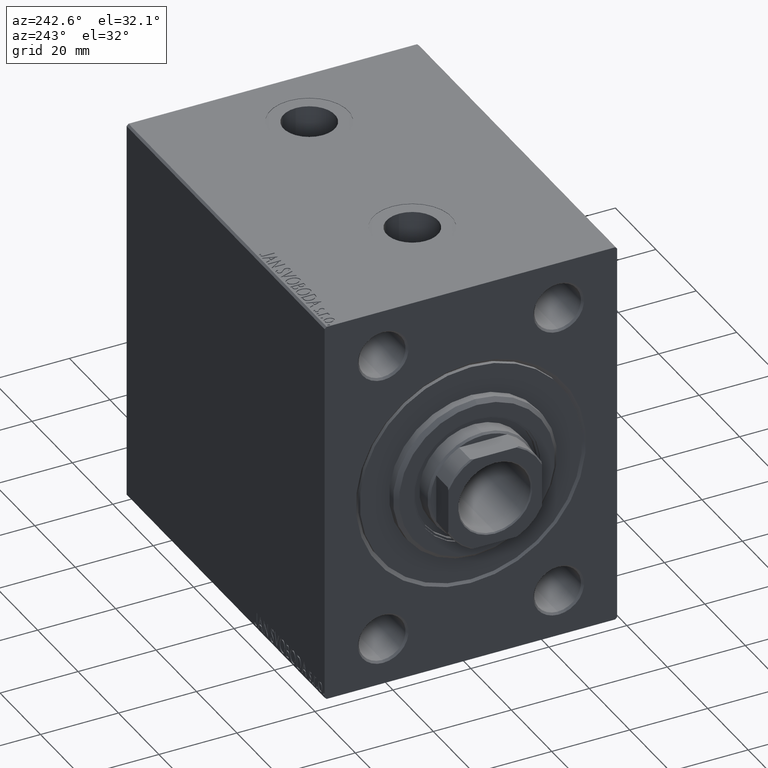
[diagram: clean part render]
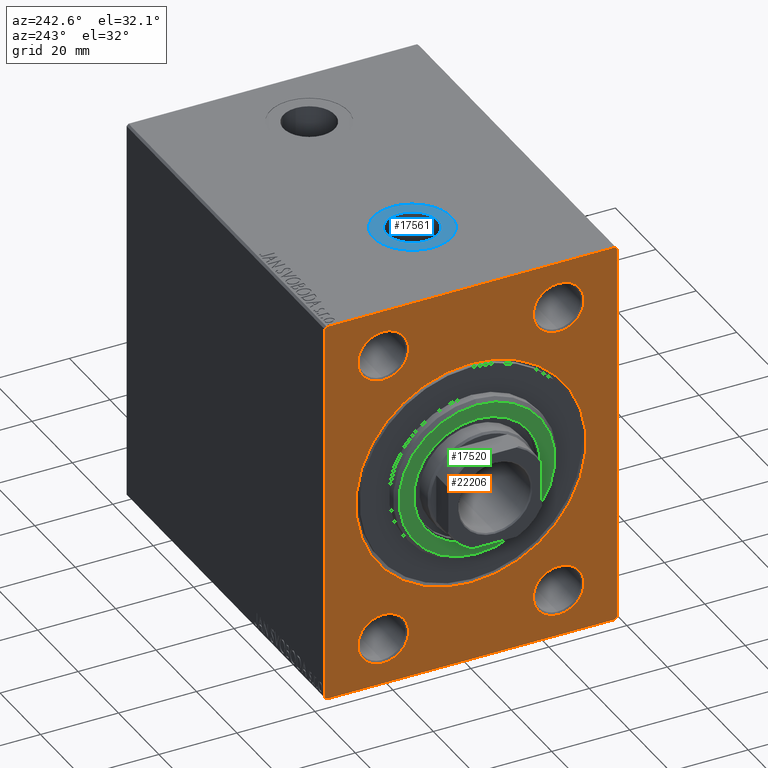
[diagram: same view with three faces highlighted in distinct colors, each labeled with its STEP entity id]
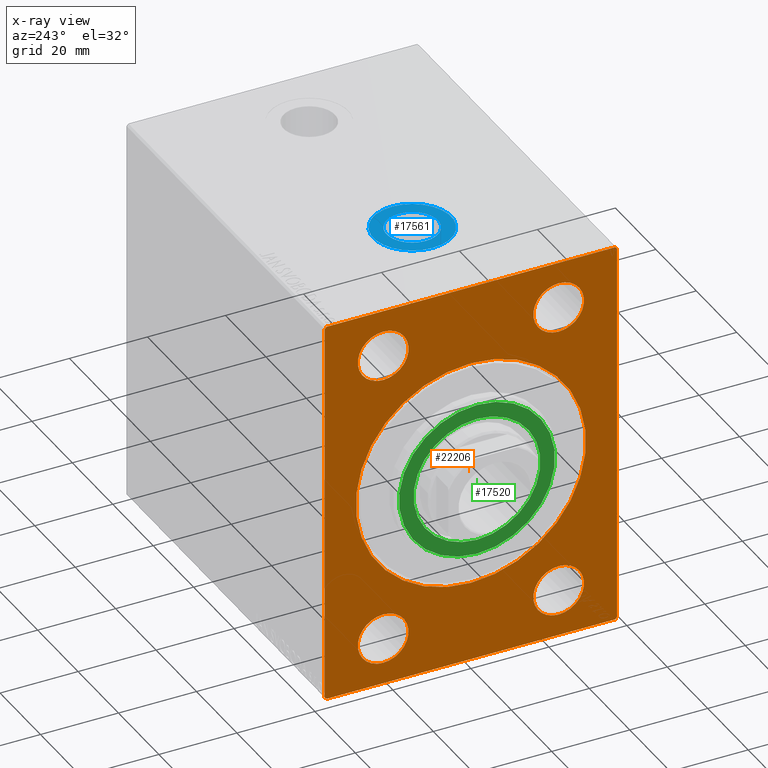
[diagram: x-ray of the same camera — body ghosted, the three highlighted faces saturated]
A machine part, auxiliary view with three faces highlighted in distinct colors.
The next image is the same camera in x-ray (body ghosted, the three faces saturated) — at least one of them is partly hidden behind the body in this view.
Their STEP definitions:

[orange] entity #22206 — the highlighted planar face has unit normal (1, 0, 0).
#15 = LINE ( 'NONE', #17143, #21832 ) ;
#80 = ORIENTED_EDGE ( 'NONE', *, *, #11935, .T. ) ;
#1145 = EDGE_CURVE ( 'NONE', #28542, #15564, #24649, .T. ) ;
#1508 = EDGE_LOOP ( 'NONE', ( #16975, #25812 ) ) ;
#1802 = VECTOR ( 'NONE', #20828, 1000.000000000000000 ) ;
#1917 = ORIENTED_EDGE ( 'NONE', *, *, #43427, .T. ) ;
#1982 = EDGE_CURVE ( 'NONE', #11039, #31494, #38134, .T. ) ;
#2757 = EDGE_CURVE ( 'NONE', #9831, #8340, #31134, .T. ) ;
#2884 = DIRECTION ( 'NONE',  ( -0.000000000000000000, 0.7071067811865525687, -0.7071067811865425767 ) ) ;
#2927 = VECTOR ( 'NONE', #4998, 1000.000000000000000 ) ;
#3395 = CIRCLE ( 'NONE', #34270, 6.499999999999992006 ) ;
#3656 = CIRCLE ( 'NONE', #36687, 29.50000000000001421 ) ;
#4084 = EDGE_CURVE ( 'NONE', #42282, #26099, #15, .T. ) ;
#4120 = VERTEX_POINT ( 'NONE', #40958 ) ;
#4163 = EDGE_CURVE ( 'NONE', #43003, #12998, #29019, .T. ) ;
#4173 = CARTESIAN_POINT ( 'NONE',  ( 0.000000000000000000, 37.49999999999999289, 50.00000000000000711 ) ) ;
#4322 = AXIS2_PLACEMENT_3D ( 'NONE', #38563, #40335, #13130 ) ;
#4853 = LINE ( 'NONE', #39257, #27435 ) ;
#4901 = CARTESIAN_POINT ( 'NONE',  ( 0.000000000000000000, -22.50000000000000000, 31.50000000000000000 ) ) ;
#4998 = DIRECTION ( 'NONE',  ( 0.000000000000000000, 1.000000000000000000, 0.000000000000000000 ) ) ;
#5139 = DIRECTION ( 'NONE',  ( 0.000000000000000000, 0.000000000000000000, -1.000000000000000000 ) ) ;
#5625 = DIRECTION ( 'NONE',  ( 1.000000000000000000, 0.000000000000000000, 0.000000000000000000 ) ) ;
#6196 = EDGE_CURVE ( 'NONE', #17336, #39296, #10736, .T. ) ;
#6201 = CARTESIAN_POINT ( 'NONE',  ( 0.000000000000000000, 37.50000000000000711, -49.50000000000001421 ) ) ;
#6473 = CARTESIAN_POINT ( 'NONE',  ( 0.000000000000000000, -37.50000000000000000, 49.99999999999998579 ) ) ;
#6548 = CIRCLE ( 'NONE', #41010, 6.499999999999992006 ) ;
#6905 = CARTESIAN_POINT ( 'NONE',  ( 0.000000000000000000, 37.50000000000000711, -50.00000000000000000 ) ) ;
#7177 = EDGE_CURVE ( 'NONE', #8897, #4120, #38088, .T. ) ;
#7768 = CARTESIAN_POINT ( 'NONE',  ( 0.000000000000000000, -37.50000000000000000, -49.49999999999997158 ) ) ;
#8116 = AXIS2_PLACEMENT_3D ( 'NONE', #18113, #15173, #17883 ) ;
#8253 = EDGE_CURVE ( 'NONE', #42282, #24604, #8596, .T. ) ;
#8273 = VECTOR ( 'NONE', #40656, 1000.000000000000000 ) ;
#8340 = VERTEX_POINT ( 'NONE', #13971 ) ;
#8370 = FACE_OUTER_BOUND ( 'NONE', #11689, .T. ) ;
#8596 = LINE ( 'NONE', #38511, #2927 ) ;
#8760 = CARTESIAN_POINT ( 'NONE',  ( 0.000000000000000000, 37.49999999999999289, 49.50000000000002842 ) ) ;
#8897 = VERTEX_POINT ( 'NONE', #41883 ) ;
#8942 = ORIENTED_EDGE ( 'NONE', *, *, #2757, .T. ) ;
#9449 = DIRECTION ( 'NONE',  ( 1.000000000000000000, 0.000000000000000000, 0.000000000000000000 ) ) ;
#9489 = CARTESIAN_POINT ( 'NONE',  ( 0.000000000000000000, -22.50000000000000000, -31.50000000000001421 ) ) ;
#9831 = VERTEX_POINT ( 'NONE', #4901 ) ;
#10736 = CIRCLE ( 'NONE', #16517, 6.499999999999992006 ) ;
#10757 = VERTEX_POINT ( 'NONE', #11714 ) ;
#11039 = VERTEX_POINT ( 'NONE', #6201 ) ;
#11297 = FACE_BOUND ( 'NONE', #14178, .T. ) ;
#11584 = CARTESIAN_POINT ( 'NONE',  ( 0.000000000000000000, 22.50000000000000000, -38.00000000000000711 ) ) ;
#11689 = EDGE_LOOP ( 'NONE', ( #34266, #19938, #30136, #80, #31600, #1917, #43076, #34173 ) ) ;
#11714 = CARTESIAN_POINT ( 'NONE',  ( 0.000000000000000000, 37.00000000000000711, 50.00000000000000711 ) ) ;
#11810 = CARTESIAN_POINT ( 'NONE',  ( 0.000000000000000000, 22.50000000000000000, -44.50000000000000000 ) ) ;
#11889 = CARTESIAN_POINT ( 'NONE',  ( 0.000000000000000000, -22.50000000000000000, 37.99999999999999289 ) ) ;
#11935 = EDGE_CURVE ( 'NONE', #10757, #31494, #17055, .T. ) ;
#12482 = DIRECTION ( 'NONE',  ( 1.000000000000000000, 0.000000000000000000, 0.000000000000000000 ) ) ;
#12744 = DIRECTION ( 'NONE',  ( 0.000000000000000000, 0.000000000000000000, -1.000000000000000000 ) ) ;
#12809 = DIRECTION ( 'NONE',  ( 0.000000000000000000, 0.000000000000000000, -1.000000000000000000 ) ) ;
#12855 = EDGE_CURVE ( 'NONE', #4120, #8897, #3656, .T. ) ;
#12889 = EDGE_CURVE ( 'NONE', #8340, #9831, #6548, .T. ) ;
#12998 = VERTEX_POINT ( 'NONE', #27616 ) ;
#13130 = DIRECTION ( 'NONE',  ( 0.000000000000000000, 0.000000000000000000, -1.000000000000000000 ) ) ;
#13971 = CARTESIAN_POINT ( 'NONE',  ( 0.000000000000000000, -22.50000000000000000, 44.49999999999998579 ) ) ;
#14061 = AXIS2_PLACEMENT_3D ( 'NONE', #27118, #40829, #12744 ) ;
#14178 = EDGE_LOOP ( 'NONE', ( #20357, #29654 ) ) ;
#14620 = VERTEX_POINT ( 'NONE', #25029 ) ;
#15080 = CARTESIAN_POINT ( 'NONE',  ( 0.000000000000000000, 22.50000000000000000, 44.49999999999998579 ) ) ;
#15125 = VECTOR ( 'NONE', #2884, 999.9999999999998863 ) ;
#15173 = DIRECTION ( 'NONE',  ( 1.000000000000000000, 0.000000000000000000, 0.000000000000000000 ) ) ;
#15346 = PLANE ( 'NONE',  #21151 ) ;
#15564 = VERTEX_POINT ( 'NONE', #15080 ) ;
#16040 = EDGE_CURVE ( 'NONE', #29433, #14620, #4853, .T. ) ;
#16517 = AXIS2_PLACEMENT_3D ( 'NONE', #32210, #25231, #17835 ) ;
#16975 = ORIENTED_EDGE ( 'NONE', *, *, #26189, .T. ) ;
#17055 = LINE ( 'NONE', #36829, #15125 ) ;
#17143 = CARTESIAN_POINT ( 'NONE',  ( 0.000000000000000000, -37.00000000000000000, -50.00000000000000000 ) ) ;
#17336 = VERTEX_POINT ( 'NONE', #26886 ) ;
#17659 = CIRCLE ( 'NONE', #14061, 6.499999999999992006 ) ;
#17835 = DIRECTION ( 'NONE',  ( 0.000000000000000000, 0.000000000000000000, -1.000000000000000000 ) ) ;
#17883 = DIRECTION ( 'NONE',  ( 0.000000000000000000, 0.000000000000000000, -1.000000000000000000 ) ) ;
#18113 = CARTESIAN_POINT ( 'NONE',  ( 0.000000000000000000, 22.50000000000000000, 37.99999999999999289 ) ) ;
#18722 = CARTESIAN_POINT ( 'NONE',  ( 0.000000000000000000, 0.000000000000000000, 0.000000000000000000 ) ) ;
#19317 = DIRECTION ( 'NONE',  ( 1.000000000000000000, 0.000000000000000000, 0.000000000000000000 ) ) ;
#19476 = DIRECTION ( 'NONE',  ( -0.000000000000000000, 0.7071067811865525687, 0.7071067811865425767 ) ) ;
#19827 = CIRCLE ( 'NONE', #25550, 6.499999999999992006 ) ;
#19938 = ORIENTED_EDGE ( 'NONE', *, *, #16040, .T. ) ;
#19988 = LINE ( 'NONE', #6473, #8273 ) ;
#20357 = ORIENTED_EDGE ( 'NONE', *, *, #25253, .T. ) ;
#20669 = LINE ( 'NONE', #23822, #36145 ) ;
#20828 = DIRECTION ( 'NONE',  ( 0.000000000000000000, -1.000000000000000000, -2.775557561562891844E-16 ) ) ;
#20838 = DIRECTION ( 'NONE',  ( 0.000000000000000000, -1.387778780781445676E-16, 1.000000000000000000 ) ) ;
#21151 = AXIS2_PLACEMENT_3D ( 'NONE', #18722, #25008, #32425 ) ;
#21242 = DIRECTION ( 'NONE',  ( 0.000000000000000000, 0.000000000000000000, -1.000000000000000000 ) ) ;
#21278 = LINE ( 'NONE', #4173, #1802 ) ;
#21422 = FACE_BOUND ( 'NONE', #1508, .T. ) ;
#21679 = DIRECTION ( 'NONE',  ( 1.000000000000000000, 0.000000000000000000, 0.000000000000000000 ) ) ;
#21832 = VECTOR ( 'NONE', #34225, 1000.000000000000114 ) ;
#22206 = ADVANCED_FACE ( 'NONE', ( #31989, #25459, #42754, #11297, #21422, #8370 ), #15346, .F. ) ;
#22542 = ORIENTED_EDGE ( 'NONE', *, *, #6196, .T. ) ;
#23183 = DIRECTION ( 'NONE',  ( 0.000000000000000000, 0.000000000000000000, -1.000000000000000000 ) ) ;
#23602 = CARTESIAN_POINT ( 'NONE',  ( 0.000000000000000000, -22.50000000000000000, 37.99999999999999289 ) ) ;
#23822 = CARTESIAN_POINT ( 'NONE',  ( 0.000000000000000000, 37.50000000000000711, -49.50000000000001421 ) ) ;
#24203 = EDGE_CURVE ( 'NONE', #29433, #26099, #19988, .T. ) ;
#24604 = VERTEX_POINT ( 'NONE', #34193 ) ;
#24649 = CIRCLE ( 'NONE', #8116, 6.499999999999992006 ) ;
#25008 = DIRECTION ( 'NONE',  ( 1.000000000000000000, 0.000000000000000000, 0.000000000000000000 ) ) ;
#25029 = CARTESIAN_POINT ( 'NONE',  ( 0.000000000000000000, -36.99999999999999289, 49.99999999999998579 ) ) ;
#25231 = DIRECTION ( 'NONE',  ( 1.000000000000000000, 0.000000000000000000, 0.000000000000000000 ) ) ;
#25253 = EDGE_CURVE ( 'NONE', #15564, #28542, #17659, .T. ) ;
#25459 = FACE_BOUND ( 'NONE', #44337, .T. ) ;
#25467 = ORIENTED_EDGE ( 'NONE', *, *, #34869, .T. ) ;
#25550 = AXIS2_PLACEMENT_3D ( 'NONE', #11584, #12482, #39913 ) ;
#25812 = ORIENTED_EDGE ( 'NONE', *, *, #4163, .T. ) ;
#26099 = VERTEX_POINT ( 'NONE', #7768 ) ;
#26189 = EDGE_CURVE ( 'NONE', #12998, #43003, #19827, .T. ) ;
#26886 = CARTESIAN_POINT ( 'NONE',  ( 0.000000000000000000, -22.50000000000000000, -44.50000000000000000 ) ) ;
#26967 = DIRECTION ( 'NONE',  ( 0.000000000000000000, 0.000000000000000000, -1.000000000000000000 ) ) ;
#27118 = CARTESIAN_POINT ( 'NONE',  ( 0.000000000000000000, 22.50000000000000000, 37.99999999999999289 ) ) ;
#27435 = VECTOR ( 'NONE', #19476, 999.9999999999998863 ) ;
#27616 = CARTESIAN_POINT ( 'NONE',  ( 0.000000000000000000, 22.50000000000000000, -31.50000000000001421 ) ) ;
#27842 = CARTESIAN_POINT ( 'NONE',  ( 0.000000000000000000, 22.50000000000000000, 31.50000000000000000 ) ) ;
#28108 = CARTESIAN_POINT ( 'NONE',  ( 0.000000000000000000, -37.00000000000000000, -50.00000000000000000 ) ) ;
#28542 = VERTEX_POINT ( 'NONE', #27842 ) ;
#28809 = EDGE_CURVE ( 'NONE', #10757, #14620, #21278, .T. ) ;
#29019 = CIRCLE ( 'NONE', #36913, 6.499999999999992006 ) ;
#29433 = VERTEX_POINT ( 'NONE', #38637 ) ;
#29654 = ORIENTED_EDGE ( 'NONE', *, *, #1145, .T. ) ;
#29984 = ORIENTED_EDGE ( 'NONE', *, *, #7177, .T. ) ;
#30136 = ORIENTED_EDGE ( 'NONE', *, *, #28809, .F. ) ;
#31134 = CIRCLE ( 'NONE', #40473, 6.499999999999992006 ) ;
#31494 = VERTEX_POINT ( 'NONE', #8760 ) ;
#31600 = ORIENTED_EDGE ( 'NONE', *, *, #1982, .F. ) ;
#31989 = FACE_BOUND ( 'NONE', #35497, .T. ) ;
#32210 = CARTESIAN_POINT ( 'NONE',  ( 0.000000000000000000, -22.50000000000000000, -38.00000000000000711 ) ) ;
#32425 = DIRECTION ( 'NONE',  ( 0.000000000000000000, 0.000000000000000000, -1.000000000000000000 ) ) ;
#33274 = CARTESIAN_POINT ( 'NONE',  ( 0.000000000000000000, 0.000000000000000000, 0.000000000000000000 ) ) ;
#34173 = ORIENTED_EDGE ( 'NONE', *, *, #4084, .T. ) ;
#34190 = EDGE_LOOP ( 'NONE', ( #44491, #8942 ) ) ;
#34193 = CARTESIAN_POINT ( 'NONE',  ( 0.000000000000000000, 37.00000000000001421, -50.00000000000000000 ) ) ;
#34225 = DIRECTION ( 'NONE',  ( -0.000000000000000000, -0.7071067811865474617, 0.7071067811865474617 ) ) ;
#34266 = ORIENTED_EDGE ( 'NONE', *, *, #24203, .F. ) ;
#34270 = AXIS2_PLACEMENT_3D ( 'NONE', #40250, #9449, #23183 ) ;
#34869 = EDGE_CURVE ( 'NONE', #39296, #17336, #3395, .T. ) ;
#35497 = EDGE_LOOP ( 'NONE', ( #29984, #42951 ) ) ;
#36145 = VECTOR ( 'NONE', #41337, 1000.000000000000000 ) ;
#36687 = AXIS2_PLACEMENT_3D ( 'NONE', #33274, #40019, #26967 ) ;
#36829 = CARTESIAN_POINT ( 'NONE',  ( 0.000000000000000000, 37.00000000000000711, 50.00000000000000711 ) ) ;
#36913 = AXIS2_PLACEMENT_3D ( 'NONE', #38314, #21679, #21242 ) ;
#38088 = CIRCLE ( 'NONE', #4322, 29.50000000000001421 ) ;
#38134 = LINE ( 'NONE', #6905, #42604 ) ;
#38314 = CARTESIAN_POINT ( 'NONE',  ( 0.000000000000000000, 22.50000000000000000, -38.00000000000000711 ) ) ;
#38511 = CARTESIAN_POINT ( 'NONE',  ( 0.000000000000000000, -37.50000000000000000, -50.00000000000000000 ) ) ;
#38563 = CARTESIAN_POINT ( 'NONE',  ( 0.000000000000000000, 0.000000000000000000, 0.000000000000000000 ) ) ;
#38637 = CARTESIAN_POINT ( 'NONE',  ( 0.000000000000000000, -37.50000000000000000, 49.49999999999998579 ) ) ;
#39257 = CARTESIAN_POINT ( 'NONE',  ( 0.000000000000000000, -37.50000000000000000, 49.49999999999998579 ) ) ;
#39296 = VERTEX_POINT ( 'NONE', #9489 ) ;
#39913 = DIRECTION ( 'NONE',  ( 0.000000000000000000, 0.000000000000000000, -1.000000000000000000 ) ) ;
#40019 = DIRECTION ( 'NONE',  ( 1.000000000000000000, 0.000000000000000000, 0.000000000000000000 ) ) ;
#40250 = CARTESIAN_POINT ( 'NONE',  ( 0.000000000000000000, -22.50000000000000000, -38.00000000000000711 ) ) ;
#40335 = DIRECTION ( 'NONE',  ( 1.000000000000000000, 0.000000000000000000, 0.000000000000000000 ) ) ;
#40473 = AXIS2_PLACEMENT_3D ( 'NONE', #11889, #19317, #5139 ) ;
#40656 = DIRECTION ( 'NONE',  ( 0.000000000000000000, 0.000000000000000000, -1.000000000000000000 ) ) ;
#40829 = DIRECTION ( 'NONE',  ( 1.000000000000000000, 0.000000000000000000, 0.000000000000000000 ) ) ;
#40958 = CARTESIAN_POINT ( 'NONE',  ( 0.000000000000000000, 3.612708057484693970E-15, -29.50000000000001421 ) ) ;
#41010 = AXIS2_PLACEMENT_3D ( 'NONE', #23602, #5625, #12809 ) ;
#41337 = DIRECTION ( 'NONE',  ( 0.000000000000000000, -0.7071067811865524577, -0.7071067811865426878 ) ) ;
#41883 = CARTESIAN_POINT ( 'NONE',  ( 0.000000000000000000, 0.000000000000000000, 29.50000000000001421 ) ) ;
#42282 = VERTEX_POINT ( 'NONE', #28108 ) ;
#42604 = VECTOR ( 'NONE', #20838, 1000.000000000000000 ) ;
#42754 = FACE_BOUND ( 'NONE', #34190, .T. ) ;
#42951 = ORIENTED_EDGE ( 'NONE', *, *, #12855, .T. ) ;
#43003 = VERTEX_POINT ( 'NONE', #11810 ) ;
#43076 = ORIENTED_EDGE ( 'NONE', *, *, #8253, .F. ) ;
#43427 = EDGE_CURVE ( 'NONE', #11039, #24604, #20669, .T. ) ;
#44337 = EDGE_LOOP ( 'NONE', ( #25467, #22542 ) ) ;
#44491 = ORIENTED_EDGE ( 'NONE', *, *, #12889, .T. ) ;

[blue] entity #17561 — the highlighted planar face has unit normal (0, 0, 1).
#1416 = CARTESIAN_POINT ( 'NONE',  ( 39.00000000000000000, -1.387778780781445991E-14, 49.89999999999999858 ) ) ;
#3653 = DIRECTION ( 'NONE',  ( 0.000000000000000000, 0.000000000000000000, 1.000000000000000000 ) ) ;
#4772 = EDGE_CURVE ( 'NONE', #27472, #17822, #32730, .T. ) ;
#6003 = VERTEX_POINT ( 'NONE', #31324 ) ;
#7244 = AXIS2_PLACEMENT_3D ( 'NONE', #43871, #33776, #20066 ) ;
#8697 = CIRCLE ( 'NONE', #7244, 9.999999999999998224 ) ;
#9744 = FACE_BOUND ( 'NONE', #17795, .T. ) ;
#9748 = AXIS2_PLACEMENT_3D ( 'NONE', #18826, #32533, #22652 ) ;
#12520 = AXIS2_PLACEMENT_3D ( 'NONE', #33649, #26897, #40827 ) ;
#13258 = CIRCLE ( 'NONE', #12520, 6.579999999999999183 ) ;
#13566 = FACE_OUTER_BOUND ( 'NONE', #20351, .T. ) ;
#13846 = EDGE_CURVE ( 'NONE', #17822, #27472, #8697, .T. ) ;
#15272 = ORIENTED_EDGE ( 'NONE', *, *, #13846, .T. ) ;
#15548 = AXIS2_PLACEMENT_3D ( 'NONE', #29371, #42393, #39709 ) ;
#16710 = ORIENTED_EDGE ( 'NONE', *, *, #4772, .T. ) ;
#17561 = ADVANCED_FACE ( 'NONE', ( #9744, #13566 ), #41198, .T. ) ;
#17795 = EDGE_LOOP ( 'NONE', ( #23995, #22965 ) ) ;
#17822 = VERTEX_POINT ( 'NONE', #28815 ) ;
#18826 = CARTESIAN_POINT ( 'NONE',  ( 29.00000000000000000, -1.387778780781445991E-14, 49.89999999999999858 ) ) ;
#20066 = DIRECTION ( 'NONE',  ( 1.000000000000000000, 0.000000000000000000, 0.000000000000000000 ) ) ;
#20096 = CARTESIAN_POINT ( 'NONE',  ( 29.00000000000000000, -1.387778780781445991E-14, 49.89999999999999858 ) ) ;
#20351 = EDGE_LOOP ( 'NONE', ( #16710, #15272 ) ) ;
#21590 = EDGE_CURVE ( 'NONE', #24774, #6003, #13258, .T. ) ;
#22453 = AXIS2_PLACEMENT_3D ( 'NONE', #20096, #3653, #34025 ) ;
#22652 = DIRECTION ( 'NONE',  ( 1.000000000000000000, 0.000000000000000000, 0.000000000000000000 ) ) ;
#22965 = ORIENTED_EDGE ( 'NONE', *, *, #21590, .F. ) ;
#23995 = ORIENTED_EDGE ( 'NONE', *, *, #30556, .F. ) ;
#24774 = VERTEX_POINT ( 'NONE', #39776 ) ;
#26897 = DIRECTION ( 'NONE',  ( 0.000000000000000000, 0.000000000000000000, 1.000000000000000000 ) ) ;
#27026 = CIRCLE ( 'NONE', #15548, 6.579999999999999183 ) ;
#27472 = VERTEX_POINT ( 'NONE', #1416 ) ;
#28815 = CARTESIAN_POINT ( 'NONE',  ( 19.00000000000000355, -1.265314100866710685E-14, 49.89999999999999858 ) ) ;
#29371 = CARTESIAN_POINT ( 'NONE',  ( 29.00000000000000000, -1.387778780781445991E-14, 49.89999999999999858 ) ) ;
#30556 = EDGE_CURVE ( 'NONE', #6003, #24774, #27026, .T. ) ;
#31324 = CARTESIAN_POINT ( 'NONE',  ( 35.57999999999999829, -1.387778780781445991E-14, 49.89999999999999858 ) ) ;
#32533 = DIRECTION ( 'NONE',  ( 0.000000000000000000, 0.000000000000000000, 1.000000000000000000 ) ) ;
#32730 = CIRCLE ( 'NONE', #9748, 9.999999999999998224 ) ;
#33649 = CARTESIAN_POINT ( 'NONE',  ( 29.00000000000000000, -1.387778780781445991E-14, 49.89999999999999858 ) ) ;
#33776 = DIRECTION ( 'NONE',  ( 0.000000000000000000, 0.000000000000000000, 1.000000000000000000 ) ) ;
#34025 = DIRECTION ( 'NONE',  ( 1.000000000000000000, 0.000000000000000000, -0.000000000000000000 ) ) ;
#39709 = DIRECTION ( 'NONE',  ( 1.000000000000000000, 0.000000000000000000, 0.000000000000000000 ) ) ;
#39776 = CARTESIAN_POINT ( 'NONE',  ( 22.42000000000000171, -1.307197021397550245E-14, 49.89999999999999858 ) ) ;
#40827 = DIRECTION ( 'NONE',  ( 1.000000000000000000, 0.000000000000000000, 0.000000000000000000 ) ) ;
#41198 = PLANE ( 'NONE',  #22453 ) ;
#42393 = DIRECTION ( 'NONE',  ( 0.000000000000000000, 0.000000000000000000, 1.000000000000000000 ) ) ;
#43871 = CARTESIAN_POINT ( 'NONE',  ( 29.00000000000000000, -1.387778780781445991E-14, 49.89999999999999858 ) ) ;

[green] entity #17520 — the highlighted planar face has unit normal (-1, 0, 0).
#1293 = DIRECTION ( 'NONE',  ( 0.000000000000000000, 0.000000000000000000, -1.000000000000000000 ) ) ;
#2120 = FACE_BOUND ( 'NONE', #42071, .T. ) ;
#2278 = CARTESIAN_POINT ( 'NONE',  ( 3.000000000000000000, 0.000000000000000000, 0.000000000000000000 ) ) ;
#3150 = EDGE_CURVE ( 'NONE', #25436, #13170, #14680, .T. ) ;
#4216 = CARTESIAN_POINT ( 'NONE',  ( 3.000000000000000000, 0.000000000000000000, 0.000000000000000000 ) ) ;
#5494 = DIRECTION ( 'NONE',  ( 0.000000000000000000, 0.000000000000000000, -1.000000000000000000 ) ) ;
#6106 = CIRCLE ( 'NONE', #43416, 16.25000000000000000 ) ;
#6158 = DIRECTION ( 'NONE',  ( 0.000000000000000000, 0.000000000000000000, -1.000000000000000000 ) ) ;
#6346 = DIRECTION ( 'NONE',  ( 1.000000000000000000, -0.000000000000000000, 0.000000000000000000 ) ) ;
#7187 = ORIENTED_EDGE ( 'NONE', *, *, #3150, .T. ) ;
#7593 = CARTESIAN_POINT ( 'NONE',  ( 3.000000000000000000, 2.510525938252074087E-15, -19.99999999999999645 ) ) ;
#7860 = CARTESIAN_POINT ( 'NONE',  ( 3.000000000000000000, 0.000000000000000000, -16.25000000000000000 ) ) ;
#8257 = ORIENTED_EDGE ( 'NONE', *, *, #26665, .T. ) ;
#10587 = CARTESIAN_POINT ( 'NONE',  ( 3.000000000000000000, 1.990051048614449313E-15, 16.25000000000000000 ) ) ;
#13170 = VERTEX_POINT ( 'NONE', #7593 ) ;
#14429 = CARTESIAN_POINT ( 'NONE',  ( 3.000000000000000000, 0.000000000000000000, 19.99999999999999645 ) ) ;
#14680 = CIRCLE ( 'NONE', #38345, 19.99999999999999645 ) ;
#15814 = CARTESIAN_POINT ( 'NONE',  ( 3.000000000000000000, 0.000000000000000000, 0.000000000000000000 ) ) ;
#16502 = DIRECTION ( 'NONE',  ( 1.000000000000000000, -0.000000000000000000, 0.000000000000000000 ) ) ;
#17520 = ADVANCED_FACE ( 'NONE', ( #32926, #2120 ), #40981, .T. ) ;
#19017 = CIRCLE ( 'NONE', #33389, 19.99999999999999645 ) ;
#20070 = DIRECTION ( 'NONE',  ( 0.000000000000000000, 0.000000000000000000, -1.000000000000000000 ) ) ;
#21633 = EDGE_LOOP ( 'NONE', ( #7187, #8257 ) ) ;
#22537 = AXIS2_PLACEMENT_3D ( 'NONE', #4216, #24910, #1293 ) ;
#23106 = EDGE_CURVE ( 'NONE', #43032, #38782, #6106, .T. ) ;
#23694 = CARTESIAN_POINT ( 'NONE',  ( 3.000000000000000000, 0.000000000000000000, 0.000000000000000000 ) ) ;
#24910 = DIRECTION ( 'NONE',  ( 1.000000000000000000, 0.000000000000000000, 0.000000000000000000 ) ) ;
#25436 = VERTEX_POINT ( 'NONE', #14429 ) ;
#26665 = EDGE_CURVE ( 'NONE', #13170, #25436, #19017, .T. ) ;
#28803 = DIRECTION ( 'NONE',  ( 1.000000000000000000, 0.000000000000000000, 0.000000000000000000 ) ) ;
#32926 = FACE_OUTER_BOUND ( 'NONE', #21633, .T. ) ;
#33389 = AXIS2_PLACEMENT_3D ( 'NONE', #15814, #6346, #20070 ) ;
#33999 = CIRCLE ( 'NONE', #22537, 16.25000000000000000 ) ;
#35994 = DIRECTION ( 'NONE',  ( 0.000000000000000000, 0.000000000000000000, -1.000000000000000000 ) ) ;
#36280 = ORIENTED_EDGE ( 'NONE', *, *, #23106, .F. ) ;
#36292 = CARTESIAN_POINT ( 'NONE',  ( 3.000000000000000000, 0.000000000000000000, 0.000000000000000000 ) ) ;
#36540 = ORIENTED_EDGE ( 'NONE', *, *, #42633, .F. ) ;
#36803 = AXIS2_PLACEMENT_3D ( 'NONE', #23694, #37387, #6158 ) ;
#37387 = DIRECTION ( 'NONE',  ( 1.000000000000000000, -0.000000000000000000, 0.000000000000000000 ) ) ;
#38345 = AXIS2_PLACEMENT_3D ( 'NONE', #36292, #16502, #5494 ) ;
#38782 = VERTEX_POINT ( 'NONE', #7860 ) ;
#40981 = PLANE ( 'NONE',  #36803 ) ;
#42071 = EDGE_LOOP ( 'NONE', ( #36540, #36280 ) ) ;
#42633 = EDGE_CURVE ( 'NONE', #38782, #43032, #33999, .T. ) ;
#43032 = VERTEX_POINT ( 'NONE', #10587 ) ;
#43416 = AXIS2_PLACEMENT_3D ( 'NONE', #2278, #28803, #35994 ) ;